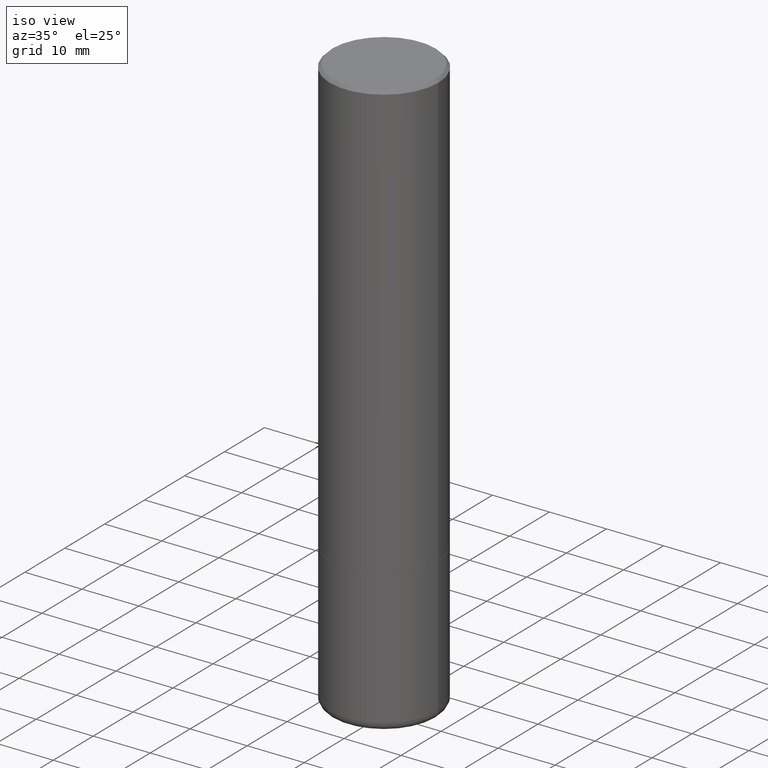
[diagram: clean part render]
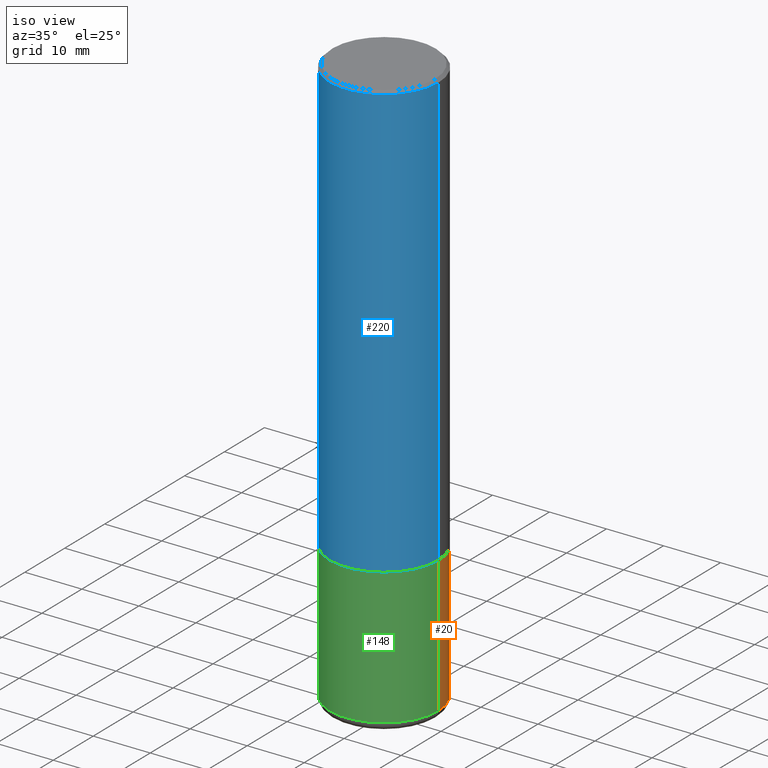
[diagram: same view with three faces highlighted in distinct colors, each labeled with its STEP entity id]
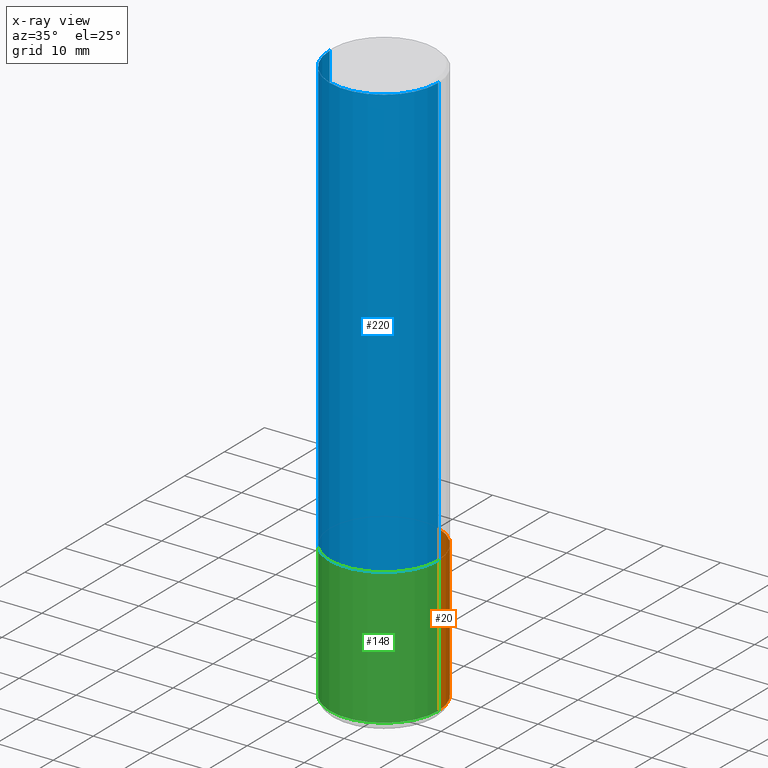
[diagram: x-ray of the same camera — body ghosted, the three highlighted faces saturated]
A machine part, iso view with three faces highlighted in distinct colors.
The next image is the same camera in x-ray (body ghosted, the three faces saturated) — at least one of them is partly hidden behind the body in this view.
Their STEP definitions:

[orange] entity #20 — the highlighted cylindrical surface (partial cylindrical patch) has radius 9.525 mm, axis along (-0, 0, 1).
#9 = VERTEX_POINT ( 'NONE', #410 ) ;
#11 = CIRCLE ( 'NONE', #362, 0.3750000000000000555 ) ;
#18 = EDGE_CURVE ( 'NONE', #9, #407, #233, .T. ) ;
#19 = ORIENTED_EDGE ( 'NONE', *, *, #18, .F. ) ;
#20 = ADVANCED_FACE ( 'NONE', ( #175 ), #200, .T. ) ;
#21 = DIRECTION ( 'NONE',  ( 1.000000000000000000, -6.982962677686266711E-15, 0.000000000000000000 ) ) ;
#56 = VECTOR ( 'NONE', #193, 39.37007874015748143 ) ;
#77 = DIRECTION ( 'NONE',  ( -2.445468806185136877E-29, 3.491481338843145188E-15, 1.000000000000000000 ) ) ;
#83 = DIRECTION ( 'NONE',  ( 1.000000000000000000, -6.982962677686266711E-15, 0.000000000000000000 ) ) ;
#107 = LINE ( 'NONE', #303, #56 ) ;
#117 = EDGE_CURVE ( 'NONE', #378, #288, #11, .T. ) ;
#118 = EDGE_CURVE ( 'NONE', #288, #407, #191, .T. ) ;
#164 = ORIENTED_EDGE ( 'NONE', *, *, #118, .T. ) ;
#175 = FACE_OUTER_BOUND ( 'NONE', #248, .T. ) ;
#191 = LINE ( 'NONE', #226, #265 ) ;
#193 = DIRECTION ( 'NONE',  ( -2.445468806185136877E-29, 3.491481338843145188E-15, 1.000000000000000000 ) ) ;
#200 = CYLINDRICAL_SURFACE ( 'NONE', #478, 0.3749999999999997780 ) ;
#226 = CARTESIAN_POINT ( 'NONE',  ( -0.3749999999999997780, 2.664535259100374119E-15, -1.844600658845588477E-29 ) ) ;
#228 = ORIENTED_EDGE ( 'NONE', *, *, #411, .F. ) ;
#233 = CIRCLE ( 'NONE', #404, 0.3749999999999995004 ) ;
#246 = CARTESIAN_POINT ( 'NONE',  ( 7.336406418555408669E-29, -1.047444401652943478E-14, -2.999999999999999556 ) ) ;
#248 = EDGE_LOOP ( 'NONE', ( #428, #164, #19, #228 ) ) ;
#265 = VECTOR ( 'NONE', #77, 39.37007874015748143 ) ;
#285 = DIRECTION ( 'NONE',  ( -2.445468806185136597E-29, 3.491481338843145583E-15, 1.000000000000000000 ) ) ;
#288 = VERTEX_POINT ( 'NONE', #289 ) ;
#289 = CARTESIAN_POINT ( 'NONE',  ( -0.3750000000000000555, -9.450908975032663339E-15, -3.940002284616149097 ) ) ;
#298 = CARTESIAN_POINT ( 'NONE',  ( -0.3749999999999995004, -9.450908975032666494E-15, -2.999999999999999556 ) ) ;
#303 = CARTESIAN_POINT ( 'NONE',  ( 0.3749999999999997780, -2.618611004132348044E-15, 1.828566290923474801E-29 ) ) ;
#309 = DIRECTION ( 'NONE',  ( -2.445468806185136597E-29, 3.491481338843145583E-15, 1.000000000000000000 ) ) ;
#341 = CARTESIAN_POINT ( 'NONE',  ( 0.000000000000000000, 0.000000000000000000, 0.000000000000000000 ) ) ;
#362 = AXIS2_PLACEMENT_3D ( 'NONE', #451, #414, #83 ) ;
#378 = VERTEX_POINT ( 'NONE', #487 ) ;
#404 = AXIS2_PLACEMENT_3D ( 'NONE', #246, #285, #21 ) ;
#407 = VERTEX_POINT ( 'NONE', #298 ) ;
#410 = CARTESIAN_POINT ( 'NONE',  ( 0.3749999999999995004, -1.309305502066178164E-14, -2.999999999999999556 ) ) ;
#411 = EDGE_CURVE ( 'NONE', #378, #9, #107, .T. ) ;
#414 = DIRECTION ( 'NONE',  ( -2.445468806185136597E-29, 3.491481338843145583E-15, 1.000000000000000000 ) ) ;
#428 = ORIENTED_EDGE ( 'NONE', *, *, #117, .T. ) ;
#451 = CARTESIAN_POINT ( 'NONE',  ( 9.635152683326964355E-29, -1.375644445173664487E-14, -3.940002284616149097 ) ) ;
#478 = AXIS2_PLACEMENT_3D ( 'NONE', #341, #309, #482 ) ;
#482 = DIRECTION ( 'NONE',  ( 1.000000000000000000, -6.982962677686265922E-15, 4.876176775795935793E-29 ) ) ;
#487 = CARTESIAN_POINT ( 'NONE',  ( 0.3750000000000000555, -1.637505545586899647E-14, -3.940002284616149097 ) ) ;

[blue] entity #220 — the highlighted cylindrical surface (partial cylindrical patch) has radius 9.525 mm, axis along (-0, 0, 1).
#14 = VERTEX_POINT ( 'NONE', #78 ) ;
#15 = EDGE_CURVE ( 'NONE', #421, #14, #221, .T. ) ;
#16 = CARTESIAN_POINT ( 'NONE',  ( 4.890937612370327459E-31, -6.982962677686369262E-17, -0.02000000000000022246 ) ) ;
#26 = DIRECTION ( 'NONE',  ( -2.445468806185136877E-29, 3.491481338843145188E-15, 1.000000000000000000 ) ) ;
#35 = CARTESIAN_POINT ( 'NONE',  ( -0.3749999999999993894, -2.605855821883354597E-15, -2.999000000000000554 ) ) ;
#38 = AXIS2_PLACEMENT_3D ( 'NONE', #294, #177, #398 ) ;
#41 = CARTESIAN_POINT ( 'NONE',  ( 0.3749999999999995004, -1.308956353932294179E-14, -2.999000000000000554 ) ) ;
#67 = DIRECTION ( 'NONE',  ( -2.445468806185136597E-29, 3.491481338843145583E-15, 1.000000000000000000 ) ) ;
#78 = CARTESIAN_POINT ( 'NONE',  ( -0.3749999999999991673, 2.548781377355480407E-15, -0.02000000000000022246 ) ) ;
#89 = VERTEX_POINT ( 'NONE', #324 ) ;
#136 = LINE ( 'NONE', #442, #374 ) ;
#155 = EDGE_CURVE ( 'NONE', #14, #89, #316, .T. ) ;
#168 = DIRECTION ( 'NONE',  ( 1.000000000000000000, -6.982962677686266711E-15, 0.000000000000000000 ) ) ;
#177 = DIRECTION ( 'NONE',  ( -2.445468806185136597E-29, 3.491481338843145583E-15, 1.000000000000000000 ) ) ;
#206 = DIRECTION ( 'NONE',  ( -2.445468806185136597E-29, 3.491481338843145583E-15, 1.000000000000000000 ) ) ;
#212 = FACE_OUTER_BOUND ( 'NONE', #258, .T. ) ;
#220 = ADVANCED_FACE ( 'NONE', ( #212 ), #437, .T. ) ;
#221 = LINE ( 'NONE', #382, #418 ) ;
#225 = ORIENTED_EDGE ( 'NONE', *, *, #155, .F. ) ;
#258 = EDGE_LOOP ( 'NONE', ( #433, #344, #485, #225 ) ) ;
#259 = AXIS2_PLACEMENT_3D ( 'NONE', #319, #67, #287 ) ;
#273 = AXIS2_PLACEMENT_3D ( 'NONE', #16, #206, #168 ) ;
#287 = DIRECTION ( 'NONE',  ( 1.000000000000000000, -6.982962677686267499E-15, 4.876176775795935232E-29 ) ) ;
#294 = CARTESIAN_POINT ( 'NONE',  ( 7.333960949749226429E-29, -1.047095253519059492E-14, -2.999000000000000554 ) ) ;
#314 = EDGE_CURVE ( 'NONE', #391, #89, #136, .T. ) ;
#316 = CIRCLE ( 'NONE', #273, 0.3749999999999991673 ) ;
#319 = CARTESIAN_POINT ( 'NONE',  ( 0.000000000000000000, 0.000000000000000000, 0.000000000000000000 ) ) ;
#324 = CARTESIAN_POINT ( 'NONE',  ( 0.3749999999999991673, -2.642516375941182112E-15, -0.02000000000000022246 ) ) ;
#334 = EDGE_CURVE ( 'NONE', #421, #391, #376, .T. ) ;
#344 = ORIENTED_EDGE ( 'NONE', *, *, #334, .T. ) ;
#374 = VECTOR ( 'NONE', #26, 39.37007874015748143 ) ;
#376 = CIRCLE ( 'NONE', #38, 0.3749999999999995004 ) ;
#382 = CARTESIAN_POINT ( 'NONE',  ( -0.3749999999999992784, 2.664535259100370569E-15, -1.844600658845586235E-29 ) ) ;
#391 = VERTEX_POINT ( 'NONE', #41 ) ;
#398 = DIRECTION ( 'NONE',  ( 1.000000000000000000, -6.982962677686266711E-15, 0.000000000000000000 ) ) ;
#418 = VECTOR ( 'NONE', #463, 39.37007874015748143 ) ;
#421 = VERTEX_POINT ( 'NONE', #35 ) ;
#433 = ORIENTED_EDGE ( 'NONE', *, *, #15, .F. ) ;
#437 = CYLINDRICAL_SURFACE ( 'NONE', #259, 0.3749999999999992784 ) ;
#442 = CARTESIAN_POINT ( 'NONE',  ( 0.3749999999999992784, -2.618611004132345283E-15, 1.828566290923472279E-29 ) ) ;
#463 = DIRECTION ( 'NONE',  ( -2.445468806185136877E-29, 3.491481338843145188E-15, 1.000000000000000000 ) ) ;
#485 = ORIENTED_EDGE ( 'NONE', *, *, #314, .T. ) ;

[green] entity #148 — the highlighted cylindrical surface (partial cylindrical patch) has radius 9.525 mm, axis along (-0, 0, 1).
#9 = VERTEX_POINT ( 'NONE', #410 ) ;
#46 = CIRCLE ( 'NONE', #125, 0.3750000000000000555 ) ;
#56 = VECTOR ( 'NONE', #193, 39.37007874015748143 ) ;
#64 = CIRCLE ( 'NONE', #244, 0.3749999999999995004 ) ;
#77 = DIRECTION ( 'NONE',  ( -2.445468806185136877E-29, 3.491481338843145188E-15, 1.000000000000000000 ) ) ;
#107 = LINE ( 'NONE', #303, #56 ) ;
#111 = DIRECTION ( 'NONE',  ( -2.445468806185136597E-29, 3.491481338843145583E-15, 1.000000000000000000 ) ) ;
#118 = EDGE_CURVE ( 'NONE', #288, #407, #191, .T. ) ;
#125 = AXIS2_PLACEMENT_3D ( 'NONE', #318, #358, #286 ) ;
#133 = DIRECTION ( 'NONE',  ( 1.000000000000000000, -6.982962677686266711E-15, 0.000000000000000000 ) ) ;
#148 = ADVANCED_FACE ( 'NONE', ( #492 ), #154, .T. ) ;
#154 = CYLINDRICAL_SURFACE ( 'NONE', #190, 0.3749999999999997780 ) ;
#159 = EDGE_CURVE ( 'NONE', #407, #9, #64, .T. ) ;
#190 = AXIS2_PLACEMENT_3D ( 'NONE', #449, #111, #263 ) ;
#191 = LINE ( 'NONE', #226, #265 ) ;
#193 = DIRECTION ( 'NONE',  ( -2.445468806185136877E-29, 3.491481338843145188E-15, 1.000000000000000000 ) ) ;
#207 = ORIENTED_EDGE ( 'NONE', *, *, #118, .F. ) ;
#218 = ORIENTED_EDGE ( 'NONE', *, *, #411, .T. ) ;
#226 = CARTESIAN_POINT ( 'NONE',  ( -0.3749999999999997780, 2.664535259100374119E-15, -1.844600658845588477E-29 ) ) ;
#244 = AXIS2_PLACEMENT_3D ( 'NONE', #276, #426, #133 ) ;
#263 = DIRECTION ( 'NONE',  ( 1.000000000000000000, -6.982962677686265922E-15, 4.876176775795935793E-29 ) ) ;
#265 = VECTOR ( 'NONE', #77, 39.37007874015748143 ) ;
#276 = CARTESIAN_POINT ( 'NONE',  ( 7.336406418555408669E-29, -1.047444401652943478E-14, -2.999999999999999556 ) ) ;
#279 = EDGE_CURVE ( 'NONE', #288, #378, #46, .T. ) ;
#286 = DIRECTION ( 'NONE',  ( 1.000000000000000000, -6.982962677686266711E-15, 0.000000000000000000 ) ) ;
#288 = VERTEX_POINT ( 'NONE', #289 ) ;
#289 = CARTESIAN_POINT ( 'NONE',  ( -0.3750000000000000555, -9.450908975032663339E-15, -3.940002284616149097 ) ) ;
#298 = CARTESIAN_POINT ( 'NONE',  ( -0.3749999999999995004, -9.450908975032666494E-15, -2.999999999999999556 ) ) ;
#303 = CARTESIAN_POINT ( 'NONE',  ( 0.3749999999999997780, -2.618611004132348044E-15, 1.828566290923474801E-29 ) ) ;
#307 = ORIENTED_EDGE ( 'NONE', *, *, #159, .F. ) ;
#318 = CARTESIAN_POINT ( 'NONE',  ( 9.635152683326964355E-29, -1.375644445173664487E-14, -3.940002284616149097 ) ) ;
#358 = DIRECTION ( 'NONE',  ( -2.445468806185136597E-29, 3.491481338843145583E-15, 1.000000000000000000 ) ) ;
#378 = VERTEX_POINT ( 'NONE', #487 ) ;
#385 = ORIENTED_EDGE ( 'NONE', *, *, #279, .T. ) ;
#388 = EDGE_LOOP ( 'NONE', ( #207, #385, #218, #307 ) ) ;
#407 = VERTEX_POINT ( 'NONE', #298 ) ;
#410 = CARTESIAN_POINT ( 'NONE',  ( 0.3749999999999995004, -1.309305502066178164E-14, -2.999999999999999556 ) ) ;
#411 = EDGE_CURVE ( 'NONE', #378, #9, #107, .T. ) ;
#426 = DIRECTION ( 'NONE',  ( -2.445468806185136597E-29, 3.491481338843145583E-15, 1.000000000000000000 ) ) ;
#449 = CARTESIAN_POINT ( 'NONE',  ( 0.000000000000000000, 0.000000000000000000, 0.000000000000000000 ) ) ;
#487 = CARTESIAN_POINT ( 'NONE',  ( 0.3750000000000000555, -1.637505545586899647E-14, -3.940002284616149097 ) ) ;
#492 = FACE_OUTER_BOUND ( 'NONE', #388, .T. ) ;